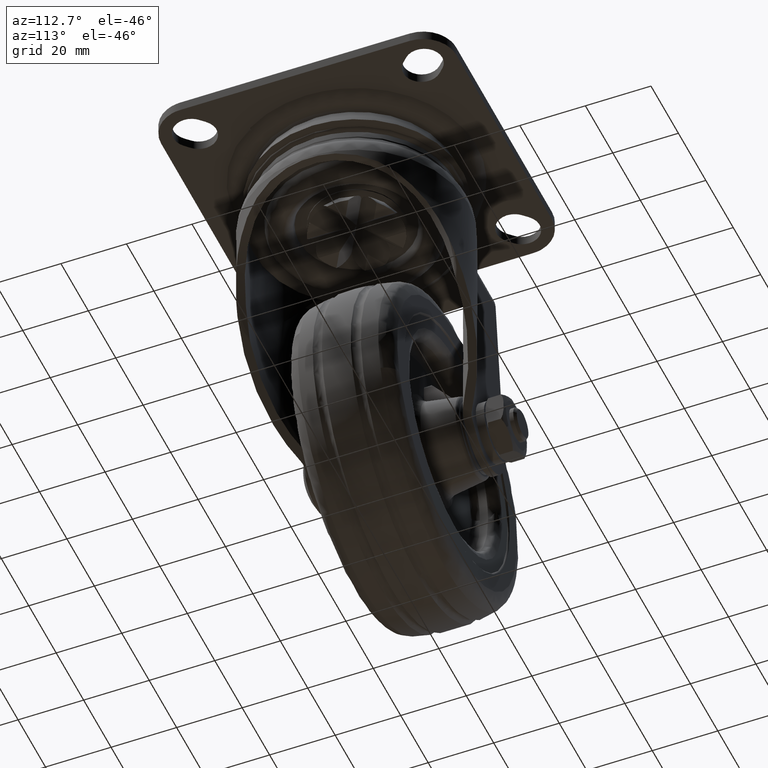
[diagram: clean part render]
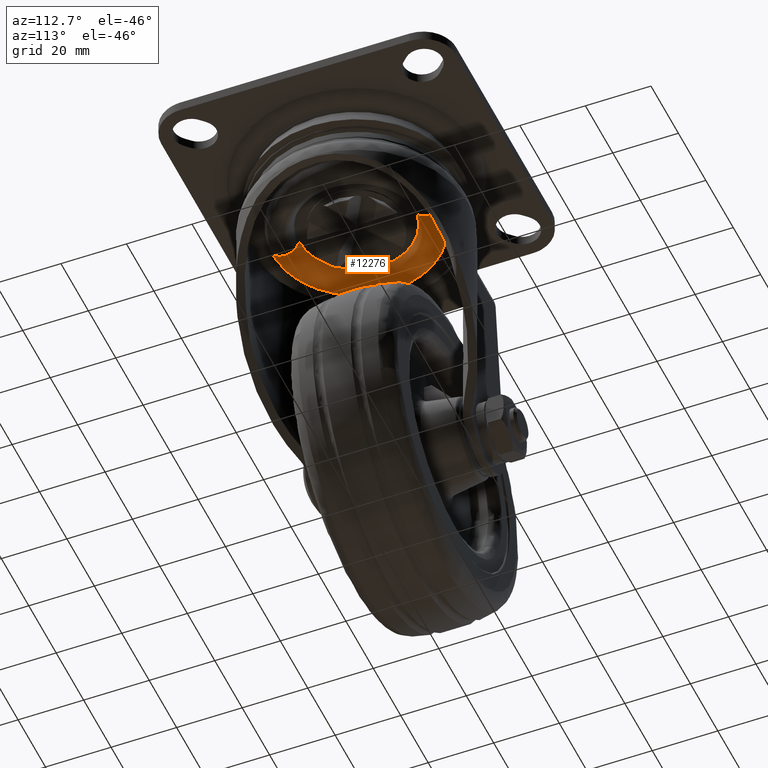
[diagram: same view with one face highlighted and labeled with its STEP entity id]
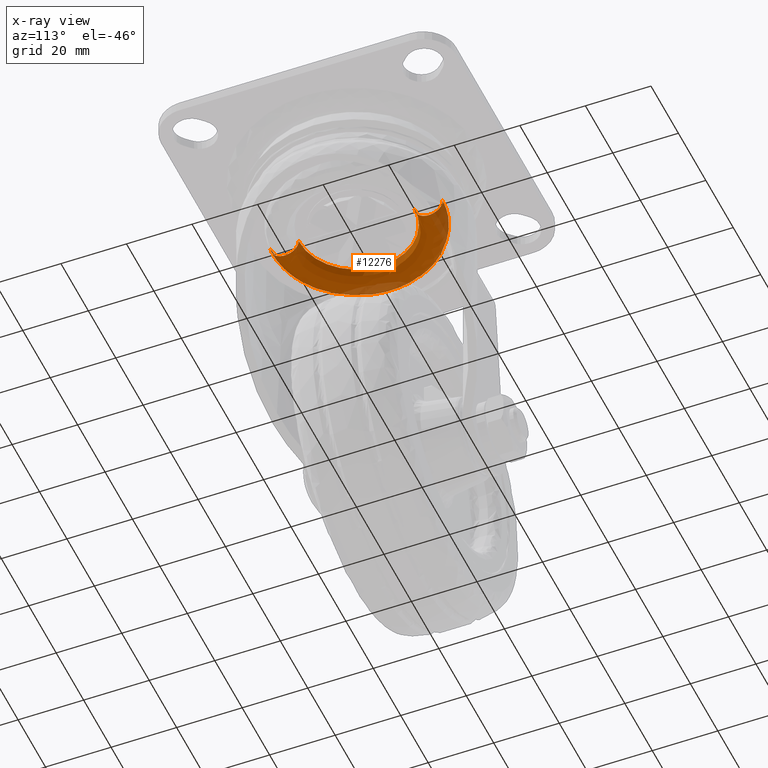
[diagram: x-ray of the same camera — body ghosted, the highlighted face saturated]
A machine part, auxiliary view. The second image highlights one B-rep face of the part: STEP entity #12276.
The next image is the same camera in x-ray: the body ghosted, the highlighted face saturated — about 15% of this face is hidden behind the body in this view.
In plain terms, the highlighted face is a freeform B-spline surface patch.
Its self-contained STEP definition (entity closure, byte-faithful):
#11919=CARTESIAN_POINT('',(-17.500000000000000,0.0,-20.550011000000051));
#11920=VERTEX_POINT('',#11919);
#11921=CARTESIAN_POINT('',(-0.439776670406891,17.494473312454009,-20.550011000475230));
#11922=VERTEX_POINT('',#11921);
#11923=CARTESIAN_POINT('',(-17.500000000000000,0.0,-20.550011000000051));
#11924=CARTESIAN_POINT('',(-17.499999999999996,17.065612833016466,-20.550011000237628));
#11925=CARTESIAN_POINT('',(-0.439776670406891,17.494473312454016,-20.550011000475223));
#11933=(BOUNDED_CURVE()B_SPLINE_CURVE(2,(#11923,#11924,#11925),.UNSPECIFIED.,.F.,.U.)B_SPLINE_CURVE_WITH_KNOTS((3,3),(0.0,0.245579891768322),.UNSPECIFIED.)CURVE()GEOMETRIC_REPRESENTATION_ITEM()RATIONAL_B_SPLINE_CURVE((1.0,0.712285260096467,0.989826157678219))REPRESENTATION_ITEM(''));
#11934=EDGE_CURVE('',#11920,#11922,#11933,.T.);
#11953=CARTESIAN_POINT('',(0.439776670406895,-17.494473312454009,-20.550011000475219));
#11954=VERTEX_POINT('',#11953);
#11968=CARTESIAN_POINT('',(0.439776670406895,-17.494473312454016,-20.550011000475223));
#11969=CARTESIAN_POINT('',(0.219923062233424,-17.499999999999993,-20.550011000472310));
#11970=CARTESIAN_POINT('',(3.552714E-015,-17.500000000000000,-20.550011000469329));
#11971=CARTESIAN_POINT('',(-17.499999999999996,-17.499999999999996,-20.550011000231738));
#11972=CARTESIAN_POINT('',(-17.500000000000000,0.0,-20.550011000000051));
#11980=(BOUNDED_CURVE()B_SPLINE_CURVE(2,(#11968,#11969,#11970,#11971,#11972),.UNSPECIFIED.,.F.,.U.)B_SPLINE_CURVE_WITH_KNOTS((3,2,3),(0.745579891768322,0.750000000000000,1.0),.UNSPECIFIED.)CURVE()GEOMETRIC_REPRESENTATION_ITEM()RATIONAL_B_SPLINE_CURVE((0.989826157678219,0.994821521090080,1.0,0.707106781186548,1.0))REPRESENTATION_ITEM(''));
#11981=EDGE_CURVE('',#11954,#11920,#11980,.T.);
#12070=CARTESIAN_POINT('',(1.377738471302128,-25.930429227371601,-19.946019923637710));
#12071=CARTESIAN_POINT('',(1.017130846240584,-25.939494194220671,-19.946019923637710));
#12072=CARTESIAN_POINT('',(-25.296366923706078,-26.600963803818967,-19.946019923637699));
#12073=CARTESIAN_POINT('',(-25.948665363762526,-0.652298440056445,-19.946019923637714));
#12074=CARTESIAN_POINT('',(-26.600963803818967,25.296366923706078,-19.946019923637699));
#12075=CARTESIAN_POINT('',(-0.287466033988625,25.957836533301460,-19.946019923637710));
#12076=CARTESIAN_POINT('',(0.073141590959284,25.966901500147664,-19.946019923637717));
#12077=CARTESIAN_POINT('',(1.414494638660081,-26.622217412283074,-24.769310924924607));
#12078=CARTESIAN_POINT('',(1.044266498171695,-26.631524219978974,-24.769310924924607));
#12079=CARTESIAN_POINT('',(-25.971239198497937,-27.310640928920872,-24.769310924924604));
#12080=CARTESIAN_POINT('',(-26.640940063709404,-0.669700865211478,-24.769310924924611));
#12081=CARTESIAN_POINT('',(-27.310640928920893,25.971239198497916,-24.769310924924604));
#12082=CARTESIAN_POINT('',(-0.295135232370686,26.650355907436840,-24.769310924924611));
#12083=CARTESIAN_POINT('',(0.075092908001034,26.659662715129802,-24.769310924924604));
#12084=CARTESIAN_POINT('',(1.155863950459868,-21.754526703128626,-24.799927108638613));
#12085=CARTESIAN_POINT('',(0.853329497984539,-21.762131824573100,-24.799927108638634));
#12086=CARTESIAN_POINT('',(-21.222575411632914,-22.317076679482181,-24.799927108638620));
#12087=CARTESIAN_POINT('',(-21.769826045557551,-0.547250633924638,-24.799927108638631));
#12088=CARTESIAN_POINT('',(-22.317076679482181,21.222575411632899,-24.799927108638620));
#12089=CARTESIAN_POINT('',(-0.241171769962326,21.777520266539543,-24.799927108638613));
#12090=CARTESIAN_POINT('',(0.061362682417670,21.785125387981619,-24.799927108638638));
#12091=CARTESIAN_POINT('',(0.894115983524987,-16.828165660456580,-24.830912309575979));
#12092=CARTESIAN_POINT('',(0.660091131882583,-16.834048585205135,-24.830912309575986));
#12093=CARTESIAN_POINT('',(-16.416675924148205,-17.263324941260521,-24.830912309575982));
#12094=CARTESIAN_POINT('',(-16.840000432704350,-0.423324508556156,-24.830912309575979));
#12095=CARTESIAN_POINT('',(-17.263324941260521,16.416675924148205,-24.830912309575982));
#12096=CARTESIAN_POINT('',(-0.186557885305217,16.845952280201683,-24.830912309575979));
#12097=CARTESIAN_POINT('',(0.047466966263441,16.851835204948394,-24.830912309575986));
#12098=CARTESIAN_POINT('',(0.931132113765745,-17.524846609324889,-19.948992203056363));
#12099=CARTESIAN_POINT('',(0.687418704321458,-17.530973085371830,-19.948992203056363));
#12100=CARTESIAN_POINT('',(-17.096321322872470,-17.978021352228271,-19.948992203056360));
#12101=CARTESIAN_POINT('',(-17.537171337550369,-0.440850014677903,-19.948992203056356));
#12102=CARTESIAN_POINT('',(-17.978021352228271,17.096321322872470,-19.948992203056360));
#12103=CARTESIAN_POINT('',(-0.194281325112962,17.543369589726943,-19.948992203056353));
#12104=CARTESIAN_POINT('',(0.049432084254525,17.549496065771944,-19.948992203056356));
#12112=(BOUNDED_SURFACE()B_SPLINE_SURFACE(2,2,((#12070,#12077,#12084,#12091,#12098),(#12071,#12078,#12085,#12092,#12099),(#12072,#12079,#12086,#12093,#12100),(#12073,#12080,#12087,#12094,#12101),(#12074,#12081,#12088,#12095,#12102),(#12075,#12082,#12089,#12096,#12103),(#12076,#12083,#12090,#12097,#12104)),.UNSPECIFIED.,.F.,.F.,.U.)B_SPLINE_SURFACE_WITH_KNOTS((3,1,2,1,3),(3,2,3),(0.0,0.860134769570577,43.866873235073967,86.873611700577356,87.733746469872088),(0.0,7.731980801945329,15.524519781382210),.UNSPECIFIED.)GEOMETRIC_REPRESENTATION_ITEM()RATIONAL_B_SPLINE_SURFACE(((0.997066552474658,0.660176400156247,1.011715728756087,0.657423084854268,1.002385943677767),(0.991293507266138,0.656353959022062,1.005857864378043,0.653616585498163,0.996582099034825),(0.696868201719042,0.461409461236468,0.707106781186548,0.459485118394464,0.700586022332671),(0.985520462057618,0.652531517887876,1.0,0.649810086142058,0.990778254391883),(0.696868201719042,0.461409461236468,0.707106781186548,0.459485118394464,0.700586022332671),(0.991293507264287,0.656353959020836,1.005857864376165,0.653616585496942,0.996582099032964),(0.997066552470955,0.660176400153796,1.011715728752329,0.657423084851826,1.002385943674045)))REPRESENTATION_ITEM('')SURFACE());
#12113=ORIENTED_EDGE('',*,*,#11981,.F.);
#12114=CARTESIAN_POINT('',(0.653382481541950,-25.991788921365409,-20.550011000583801));
#12115=VERTEX_POINT('',#12114);
#12116=CARTESIAN_POINT('',(0.653382481541950,-25.991788921365409,-20.550011000583801));
#12117=CARTESIAN_POINT('',(0.653382061784943,-25.991772223281441,-20.636900306997660));
#12118=CARTESIAN_POINT('',(0.653304900236163,-25.988702709257620,-20.741190935533840));
#12119=CARTESIAN_POINT('',(0.653086170902098,-25.980001578073018,-20.862541030528089));
#12120=CARTESIAN_POINT('',(0.652959929972271,-25.974979668707331,-20.931898117247218));
#12121=CARTESIAN_POINT('',(0.651763488540226,-25.927384800376540,-21.416447845628930));
#12122=CARTESIAN_POINT('',(0.646799187671021,-25.729903135252041,-22.146596500856980));
#12123=CARTESIAN_POINT('',(0.635327817438669,-25.273567922211711,-22.952153762181890));
#12124=CARTESIAN_POINT('',(0.623099890859380,-24.787136626945500,-23.545091621744639));
#12125=CARTESIAN_POINT('',(0.608473830202266,-24.205306699856109,-24.047178119854571));
#12126=CARTESIAN_POINT('',(0.589374772581931,-23.445539352842498,-24.477661421718881));
#12127=CARTESIAN_POINT('',(0.575128561478924,-22.878819976950151,-24.657372981489502));
#12128=CARTESIAN_POINT('',(0.566986967260218,-22.554944445341640,-24.721737186807420));
#12129=CARTESIAN_POINT('',(0.566125832697619,-22.520688204271899,-24.727712275273539));
#12130=CARTESIAN_POINT('',(0.564839525237416,-22.469518433181111,-24.737864511947439));
#12131=CARTESIAN_POINT('',(0.563542443792023,-22.417920069103818,-24.745524830026369));
#12132=CARTESIAN_POINT('',(0.562250373308561,-22.366521042885399,-24.754403237031021));
#12133=CARTESIAN_POINT('',(0.560517219236343,-22.297575553658110,-24.763209456037860));
#12134=CARTESIAN_POINT('',(0.558786950969284,-22.228744862792691,-24.772956422018499));
#12135=CARTESIAN_POINT('',(0.557046007411026,-22.159489505023110,-24.779026422536120));
#12136=CARTESIAN_POINT('',(0.555742607557044,-22.107639792391058,-24.784765869029201));
#12137=CARTESIAN_POINT('',(0.554433738458770,-22.055572511263779,-24.787968334108459));
#12138=CARTESIAN_POINT('',(0.553127339127142,-22.003603478337531,-24.792440688018321));
#12139=CARTESIAN_POINT('',(0.551817173174189,-21.951484607867091,-24.794444751442619));
#12140=CARTESIAN_POINT('',(0.550072149163037,-21.882066928221100,-24.798211646175758));
#12141=CARTESIAN_POINT('',(0.548326262498345,-21.812614931908630,-24.799587099867072));
#12142=CARTESIAN_POINT('',(0.546580372490138,-21.743162802589900,-24.800273199866179));
#12143=CARTESIAN_POINT('',(0.545271543663071,-21.691097123465681,-24.799193775385881));
#12144=CARTESIAN_POINT('',(0.543960755643459,-21.638953506960870,-24.799156388537380));
#12145=CARTESIAN_POINT('',(0.542651477136893,-21.586869939425249,-24.796601784164721));
#12146=CARTESIAN_POINT('',(0.541340837282795,-21.534732216997622,-24.795322577059022));
#12147=CARTESIAN_POINT('',(0.540033277058443,-21.482717003343382,-24.791485553148330));
#12148=CARTESIAN_POINT('',(0.538723637389441,-21.430619068636808,-24.788921614817749));
#12149=CARTESIAN_POINT('',(0.537418473657179,-21.378699188295510,-24.783872030710128));
#12150=CARTESIAN_POINT('',(0.535676307817303,-21.309395207725782,-24.778213402490881));
#12151=CARTESIAN_POINT('',(0.525688118252938,-20.912061452435822,-24.734064308236480));
#12152=CARTESIAN_POINT('',(0.509463301827415,-20.266632448741049,-24.572233398275241));
#12153=CARTESIAN_POINT('',(0.489072411350491,-19.455475528391059,-24.163805443327490));
#12154=CARTESIAN_POINT('',(0.472460081795531,-18.794631113729992,-23.647917714220110));
#12155=CARTESIAN_POINT('',(0.458695623327994,-18.247076030078979,-23.012972436033898));
#12156=CARTESIAN_POINT('',(0.448310170263149,-17.833938990573301,-22.283360040078009));
#12157=CARTESIAN_POINT('',(0.443901951480673,-17.658578469861030,-21.752572594339838));
#12158=CARTESIAN_POINT('',(0.442275864234303,-17.593892137281340,-21.464185046752121));
#12159=CARTESIAN_POINT('',(0.442104728893570,-17.587084312183670,-21.430083337860779));
#12160=CARTESIAN_POINT('',(0.441818190757923,-17.575685722605790,-21.379174007513210));
#12161=CARTESIAN_POINT('',(0.441593957680533,-17.566765650542131,-21.327774094112520));
#12162=CARTESIAN_POINT('',(0.441338213307015,-17.556592047841740,-21.276607470842510));
#12163=CARTESIAN_POINT('',(0.441145868585583,-17.548940505989808,-21.225003522389368));
#12164=CARTESIAN_POINT('',(0.440922799939053,-17.540066755402449,-21.173597411466829));
#12165=CARTESIAN_POINT('',(0.440701511064983,-17.531263804800510,-21.104636248079061));
#12166=CARTESIAN_POINT('',(0.440456587427843,-17.521520654865569,-21.035788353815679));
#12167=CARTESIAN_POINT('',(0.440304048130973,-17.515452587047669,-20.966515765550369));
#12168=CARTESIAN_POINT('',(0.440159829514167,-17.509715518860411,-20.914655654864919));
#12169=CARTESIAN_POINT('',(0.440079350431629,-17.506514032156421,-20.862577849258670));
#12170=CARTESIAN_POINT('',(0.439966868853999,-17.502039474745111,-20.810594669174250));
#12171=CARTESIAN_POINT('',(0.439918628537142,-17.500120457677049,-20.758455471947791));
#12172=CARTESIAN_POINT('',(0.439838758223485,-17.496943188016999,-20.706381129330332));
#12173=CARTESIAN_POINT('',(0.439813441033281,-17.495936061130571,-20.636859227320979));
#12174=CARTESIAN_POINT('',(0.439765227238890,-17.494018099135669,-20.584765787424139));
#12175=CARTESIAN_POINT('',(0.439776670406895,-17.494473312454009,-20.550011000475219));
#12176=B_SPLINE_CURVE_WITH_KNOTS('',3,(#12116,#12117,#12118,#12119,#12120,#12121,#12122,#12123,#12124,#12125,#12126,#12127,#12128,#12129,#12130,#12131,#12132,#12133,#12134,#12135,#12136,#12137,#12138,#12139,#12140,#12141,#12142,#12143,#12144,#12145,#12146,#12147,#12148,#12149,#12150,#12151,#12152,#12153,#12154,#12155,#12156,#12157,#12158,#12159,#12160,#12161,#12162,#12163,#12164,#12165,#12166,#12167,#12168,#12169,#12170,#12171,#12172,#12173,#12174,#12175),.UNSPECIFIED.,.F.,.U.,(4,1,1,1,1,1,1,1,1,1,2,1,1,1,1,1,1,1,1,1,1,1,1,1,1,1,1,1,1,1,1,1,1,1,1,1,1,1,1,2,1,1,1,1,1,1,1,1,1,1,1,1,1,1,1,4),(0.000269002327714,0.260951454671263,0.313108608324043,0.365265761976813,0.469580001696272,1.773550621040887,2.608052997565279,3.233921983630095,4.068415857654905,4.902952430642545,5.841696750054767,5.893872261939459,5.946047773824151,5.998219073750317,6.050390373676483,6.102555540082324,6.206791644554774,6.258967686433022,6.311143728311272,6.363317836706499,6.415491945101735,6.467654147839604,6.519816350577464,6.624112457939753,6.676095336151420,6.728242826720790,6.780390317290164,6.832549498296779,6.884708679303405,6.936876784558623,6.989044889813840,7.041219491705872,7.093394093597910,7.197724136092619,8.240789839001623,9.075309744045445,9.909814941463935,10.744322810404830,11.578823189616180,12.413330768848770,12.465492543013641,12.517654317178520,12.569815694179670,12.621977071180810,12.674137523764619,12.726297976348430,12.778456845840450,12.882691758908409,12.934861476844800,12.987031194781190,13.039199837678330,13.091368480575481,13.143534355909731,13.195700231243970,13.247861973034411,13.352090306698379),.UNSPECIFIED.);
#12177=EDGE_CURVE('',#12115,#11954,#12176,.T.);
#12178=ORIENTED_EDGE('',*,*,#12177,.F.);
#12179=CARTESIAN_POINT('',(-26.0,0.0,-20.550011000000051));
#12180=VERTEX_POINT('',#12179);
#12181=CARTESIAN_POINT('',(0.653382481541950,-25.991788921365416,-20.550011000583797));
#12182=CARTESIAN_POINT('',(0.326742835215462,-26.0,-20.550011000580223));
#12183=CARTESIAN_POINT('',(4.385776E-015,-26.0,-20.550011000576561));
#12184=CARTESIAN_POINT('',(-26.000000000000007,-26.000000000000007,-20.550011000284677));
#12185=CARTESIAN_POINT('',(-26.0,0.0,-20.550011000000051));
#12193=(BOUNDED_CURVE()B_SPLINE_CURVE(2,(#12181,#12182,#12183,#12184,#12185),.UNSPECIFIED.,.F.,.U.)B_SPLINE_CURVE_WITH_KNOTS((3,2,3),(0.745579891769705,0.750000000000000,1.0),.UNSPECIFIED.)CURVE()GEOMETRIC_REPRESENTATION_ITEM()RATIONAL_B_SPLINE_CURVE((0.989826157681345,0.994821521091701,1.0,0.707106781186547,1.0))REPRESENTATION_ITEM(''));
#12194=EDGE_CURVE('',#12115,#12180,#12193,.T.);
#12195=ORIENTED_EDGE('',*,*,#12194,.T.);
#12196=CARTESIAN_POINT('',(-0.653382481541950,25.991788921365409,-20.550011000583801));
#12197=VERTEX_POINT('',#12196);
#12198=CARTESIAN_POINT('',(-26.0,0.0,-20.550011000000051));
#12199=CARTESIAN_POINT('',(-26.000000000000004,25.354624780682062,-20.550011000291928));
#12200=CARTESIAN_POINT('',(-0.653382481541950,25.991788921365409,-20.550011000583801));
#12208=(BOUNDED_CURVE()B_SPLINE_CURVE(2,(#12198,#12199,#12200),.UNSPECIFIED.,.F.,.U.)B_SPLINE_CURVE_WITH_KNOTS((3,3),(0.0,0.245579891769705),.UNSPECIFIED.)CURVE()GEOMETRIC_REPRESENTATION_ITEM()RATIONAL_B_SPLINE_CURVE((1.0,0.712285260094847,0.989826157681345))REPRESENTATION_ITEM(''));
#12209=EDGE_CURVE('',#12180,#12197,#12208,.T.);
#12210=ORIENTED_EDGE('',*,*,#12209,.T.);
#12211=CARTESIAN_POINT('',(-0.653382481541950,25.991788921365409,-20.550011000583801));
#12212=CARTESIAN_POINT('',(-0.653382061769339,25.991772222660710,-20.636900306724620));
#12213=CARTESIAN_POINT('',(-0.653304900351610,25.988702713850149,-20.741190937553590));
#12214=CARTESIAN_POINT('',(-0.653086170473798,25.980001561035071,-20.862541023035231));
#12215=CARTESIAN_POINT('',(-0.652960642517973,25.975008014030340,-20.931904235690929));
#12216=CARTESIAN_POINT('',(-0.652100770836646,25.940802010829550,-21.277971613792950));
#12217=CARTESIAN_POINT('',(-0.648450653075915,25.795599020059711,-21.944089932735480));
#12218=CARTESIAN_POINT('',(-0.638475581470022,25.398787101852271,-22.783335187986498));
#12219=CARTESIAN_POINT('',(-0.624429854980897,24.840043075646491,-23.499461740317830));
#12220=CARTESIAN_POINT('',(-0.608473689989330,24.205301122135371,-24.047172867473002));
#12221=CARTESIAN_POINT('',(-0.589374761155653,23.445538898301091,-24.477662890745250));
#12222=CARTESIAN_POINT('',(-0.575128611041784,22.878821948578508,-24.657373311957588));
#12223=CARTESIAN_POINT('',(-0.566986957999387,22.554944076942562,-24.721737087360431));
#12224=CARTESIAN_POINT('',(-0.566125832697617,22.520688204271892,-24.727712275273539));
#12225=CARTESIAN_POINT('',(-0.564839525237415,22.469518433181118,-24.737864511947439));
#12226=CARTESIAN_POINT('',(-0.563542443792021,22.417920069103790,-24.745524830026369));
#12227=CARTESIAN_POINT('',(-0.562250526731836,22.366527146118280,-24.754440831466450));
#12228=CARTESIAN_POINT('',(-0.560949249481251,22.314761871408962,-24.760830876098559));
#12229=CARTESIAN_POINT('',(-0.559220348775719,22.245985582630521,-24.770963547384738));
#12230=CARTESIAN_POINT('',(-0.557480056370070,22.176756127944749,-24.777333939374628));
#12231=CARTESIAN_POINT('',(-0.555742563990841,22.107638059311999,-24.784736497094510));
#12232=CARTESIAN_POINT('',(-0.554433738458767,22.055572511263769,-24.787968334108459));
#12233=CARTESIAN_POINT('',(-0.553127339127139,22.003603478337549,-24.792440688018331));
#12234=CARTESIAN_POINT('',(-0.551817173174187,21.951484607867080,-24.794444751442640));
#12235=CARTESIAN_POINT('',(-0.550072149163036,21.882066928221139,-24.798211646175751));
#12236=CARTESIAN_POINT('',(-0.548326262498341,21.812614931908570,-24.799587099867079));
#12237=CARTESIAN_POINT('',(-0.546580372490136,21.743162802589939,-24.800273199866179));
#12238=CARTESIAN_POINT('',(-0.545271543663068,21.691097123465639,-24.799193775385881));
#12239=CARTESIAN_POINT('',(-0.543960755643456,21.638953506960881,-24.799156388537380));
#12240=CARTESIAN_POINT('',(-0.542651477136891,21.586869939425242,-24.796601784164721));
#12241=CARTESIAN_POINT('',(-0.541340837282792,21.534732216997622,-24.795322577059029));
#12242=CARTESIAN_POINT('',(-0.540033277058441,21.482717003343399,-24.791485553148330));
#12243=CARTESIAN_POINT('',(-0.538723637389439,21.430619068636801,-24.788921614817749));
#12244=CARTESIAN_POINT('',(-0.537418557177935,21.378702510781160,-24.783835876659261));
#12245=CARTESIAN_POINT('',(-0.536547261930863,21.344042074046961,-24.781174392294542));
#12246=CARTESIAN_POINT('',(-0.523066252497652,20.807762694417701,-24.728876041614090));
#12247=CARTESIAN_POINT('',(-0.500025987432250,19.891212704820710,-24.462283068196879));
#12248=CARTESIAN_POINT('',(-0.474752831606998,18.885837521724330,-23.753815496534660));
#12249=CARTESIAN_POINT('',(-0.454679471062580,18.087312055722158,-22.827785925374659));
#12250=CARTESIAN_POINT('',(-0.446150844392778,17.748040234703819,-22.088784564607408));
#12251=CARTESIAN_POINT('',(-0.442767357309427,17.613443907697889,-21.548874655789341));
#12252=CARTESIAN_POINT('',(-0.442454384276218,17.600993728434862,-21.498224540217191));
#12253=CARTESIAN_POINT('',(-0.442103830973901,17.587048592618071,-21.430091144822210));
#12254=CARTESIAN_POINT('',(-0.441818190757919,17.575685722605790,-21.379174007513232));
#12255=CARTESIAN_POINT('',(-0.441593957680529,17.566765650542131,-21.327774094112499));
#12256=CARTESIAN_POINT('',(-0.441338213307012,17.556592047841740,-21.276607470842521));
#12257=CARTESIAN_POINT('',(-0.441145868585580,17.548940505989819,-21.225003522389368));
#12258=CARTESIAN_POINT('',(-0.440921854974332,17.540029164367830,-21.173603518238121));
#12259=CARTESIAN_POINT('',(-0.440761102225526,17.533634362492631,-21.121830526086960));
#12260=CARTESIAN_POINT('',(-0.440507333929515,17.523539368862600,-21.053033260613919));
#12261=CARTESIAN_POINT('',(-0.440345899849696,17.517117463395870,-20.983792713871111));
#12262=CARTESIAN_POINT('',(-0.440160784403028,17.509753504681161,-20.914652909220521));
#12263=CARTESIAN_POINT('',(-0.440079350431626,17.506514032156421,-20.862577849258710));
#12264=CARTESIAN_POINT('',(-0.439966868853995,17.502039474745121,-20.810594669174250));
#12265=CARTESIAN_POINT('',(-0.439918628537138,17.500120457677038,-20.758455471947791));
#12266=CARTESIAN_POINT('',(-0.439838758223481,17.496943188016999,-20.706381129330339));
#12267=CARTESIAN_POINT('',(-0.439813441033277,17.495936061130571,-20.636859227320979));
#12268=CARTESIAN_POINT('',(-0.439765227238886,17.494018099135669,-20.584765787424150));
#12269=CARTESIAN_POINT('',(-0.439776670406891,17.494473312454009,-20.550011000475230));
#12270=B_SPLINE_CURVE_WITH_KNOTS('',3,(#12211,#12212,#12213,#12214,#12215,#12216,#12217,#12218,#12219,#12220,#12221,#12222,#12223,#12224,#12225,#12226,#12227,#12228,#12229,#12230,#12231,#12232,#12233,#12234,#12235,#12236,#12237,#12238,#12239,#12240,#12241,#12242,#12243,#12244,#12245,#12246,#12247,#12248,#12249,#12250,#12251,#12252,#12253,#12254,#12255,#12256,#12257,#12258,#12259,#12260,#12261,#12262,#12263,#12264,#12265,#12266,#12267,#12268,#12269),.UNSPECIFIED.,.F.,.U.,(4,1,1,1,1,1,1,1,1,1,2,1,1,1,1,1,1,1,1,1,1,1,1,1,1,1,1,1,1,1,1,1,2,1,1,1,2,1,1,1,1,1,1,1,1,1,1,1,1,1,1,1,1,4),(0.000269002324846,0.260951454668527,0.313108608321325,0.365265761974136,0.469580001693647,1.356301184705947,2.399429382319644,3.233921983628182,4.068415857652949,4.902952430640401,5.841696750052581,5.893872261937274,5.946047773821973,5.998219073748147,6.050390373674322,6.102555540080173,6.154720706486025,6.258967686430898,6.311143728309155,6.363317836704408,6.415491945099661,6.467654147837552,6.519816350575435,6.624112457937759,6.676095336149459,6.728242826718858,6.780390317288280,6.832549498294933,6.884708679301594,6.936876784556827,6.989044889812058,7.041219491704119,7.093394093596177,8.658056638124259,9.909814941463200,10.744322810404340,12.309007248342210,12.413330768848580,12.465492543013470,12.517654317178360,12.569815694179519,12.621977071180680,12.674137523764490,12.726297976348320,12.778456845840370,12.830615715332421,12.934861476844761,12.987031194781160,13.039199837678320,13.091368480575481,13.143534355909731,13.195700231243970,13.247861973034411,13.352090306698379),.UNSPECIFIED.);
#12271=EDGE_CURVE('',#12197,#11922,#12270,.T.);
#12272=ORIENTED_EDGE('',*,*,#12271,.T.);
#12273=ORIENTED_EDGE('',*,*,#11934,.F.);
#12274=EDGE_LOOP('',(#12113,#12178,#12195,#12210,#12272,#12273));
#12275=FACE_OUTER_BOUND('',#12274,.T.);
#12276=ADVANCED_FACE('',(#12275),#12112,.T.);